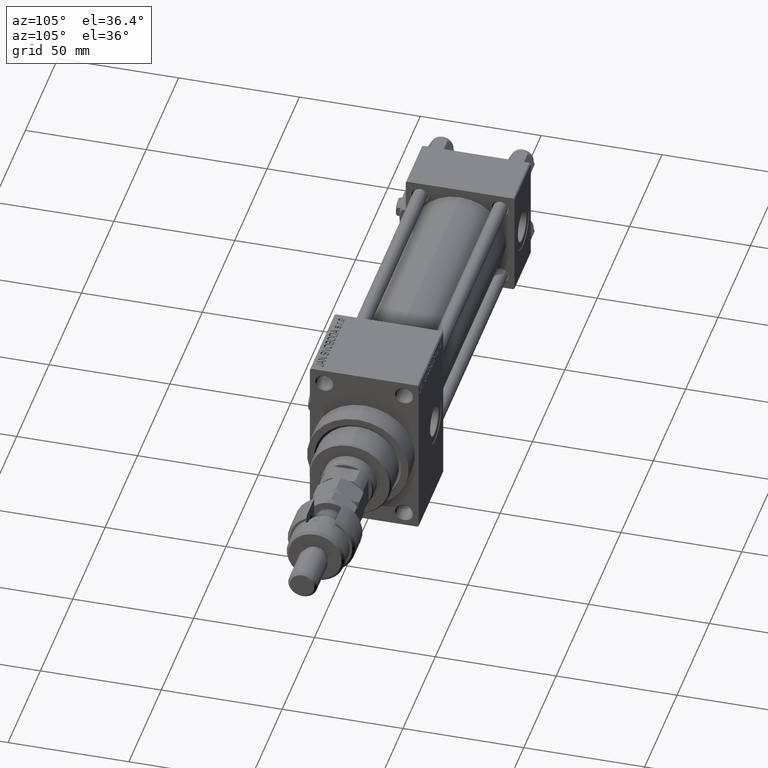
[diagram: clean part render]
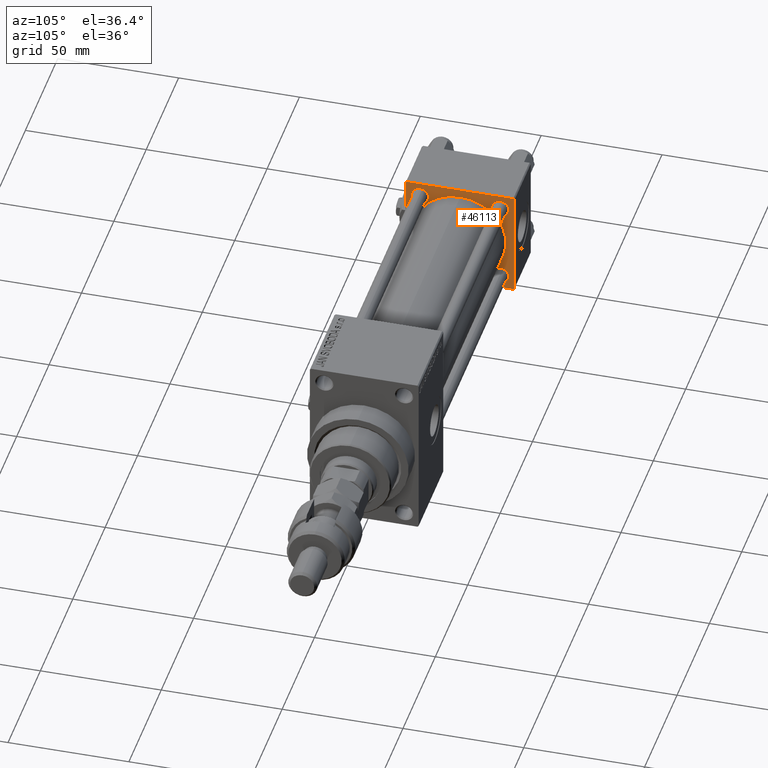
[diagram: same view with one face highlighted and labeled with its STEP entity id]
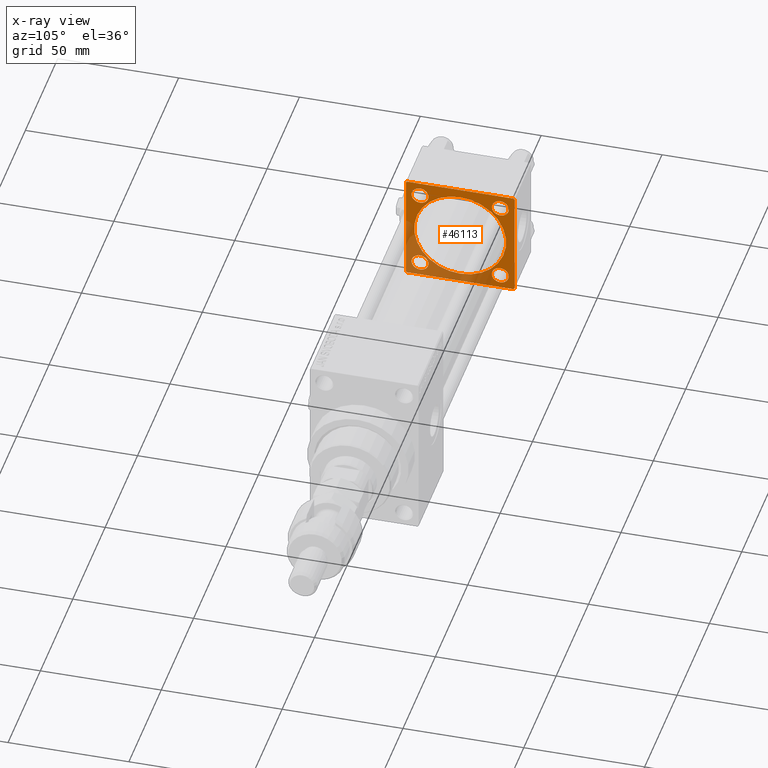
[diagram: x-ray of the same camera — body ghosted, the highlighted face saturated]
A machine part, auxiliary view. The second image highlights one B-rep face of the part: STEP entity #46113.
The next image is the same camera in x-ray: the body ghosted, the highlighted face saturated — about 34% of this face is hidden behind the body in this view.
In plain terms, the highlighted planar face has unit normal (-1, 0, 0).
Its self-contained STEP definition (entity closure, byte-faithful):
#101 = EDGE_CURVE ( 'NONE', #19522, #45952, #25700, .T. ) ;
#136 = VECTOR ( 'NONE', #27514, 1000.000000000000000 ) ;
#723 = EDGE_CURVE ( 'NONE', #51789, #40783, #13174, .T. ) ;
#821 = DIRECTION ( 'NONE',  ( -1.000000000000000000, 0.000000000000000000, -0.000000000000000000 ) ) ;
#909 = CIRCLE ( 'NONE', #14351, 3.499999999999975131 ) ;
#1362 = AXIS2_PLACEMENT_3D ( 'NONE', #33936, #5333, #18177 ) ;
#1469 = EDGE_CURVE ( 'NONE', #25393, #31443, #44878, .T. ) ;
#2395 = CARTESIAN_POINT ( 'NONE',  ( 25.00000000000000000, 22.50000000000000000, -21.99999999999998224 ) ) ;
#2739 = CARTESIAN_POINT ( 'NONE',  ( 25.00000000000000000, 22.50000000000000000, 21.99999999999999645 ) ) ;
#2787 = DIRECTION ( 'NONE',  ( 1.000000000000000000, -0.000000000000000000, 0.000000000000000000 ) ) ;
#2802 = CARTESIAN_POINT ( 'NONE',  ( 25.00000000000000000, -16.59999999999999076, -16.60000000000000853 ) ) ;
#2965 = DIRECTION ( 'NONE',  ( 0.000000000000000000, 0.000000000000000000, 1.000000000000000000 ) ) ;
#3487 = LINE ( 'NONE', #38686, #47909 ) ;
#3948 = DIRECTION ( 'NONE',  ( 0.000000000000000000, 0.000000000000000000, -1.000000000000000000 ) ) ;
#4108 = EDGE_CURVE ( 'NONE', #11998, #25393, #12152, .T. ) ;
#4167 = EDGE_CURVE ( 'NONE', #29602, #6072, #19145, .T. ) ;
#4453 = EDGE_LOOP ( 'NONE', ( #36517, #10837 ) ) ;
#4818 = VECTOR ( 'NONE', #40155, 1000.000000000000000 ) ;
#5333 = DIRECTION ( 'NONE',  ( 1.000000000000000000, -0.000000000000000000, 0.000000000000000000 ) ) ;
#5917 = FACE_BOUND ( 'NONE', #30658, .T. ) ;
#6072 = VERTEX_POINT ( 'NONE', #23385 ) ;
#6089 = CARTESIAN_POINT ( 'NONE',  ( 25.00000000000000000, -21.99999999999997158, -22.50000000000000711 ) ) ;
#6290 = ORIENTED_EDGE ( 'NONE', *, *, #45491, .F. ) ;
#6684 = CARTESIAN_POINT ( 'NONE',  ( 25.00000000000000000, 16.59999999999999787, 16.60000000000000497 ) ) ;
#7339 = ORIENTED_EDGE ( 'NONE', *, *, #40367, .T. ) ;
#7429 = VERTEX_POINT ( 'NONE', #15532 ) ;
#8261 = LINE ( 'NONE', #24274, #27801 ) ;
#8432 = VECTOR ( 'NONE', #3948, 1000.000000000000000 ) ;
#8672 = AXIS2_PLACEMENT_3D ( 'NONE', #23732, #19539, #11647 ) ;
#8730 = DIRECTION ( 'NONE',  ( -1.000000000000000000, 0.000000000000000000, -0.000000000000000000 ) ) ;
#9590 = FACE_BOUND ( 'NONE', #42719, .T. ) ;
#10124 = VECTOR ( 'NONE', #14180, 1000.000000000000000 ) ;
#10265 = CARTESIAN_POINT ( 'NONE',  ( 25.00000000000000000, 21.99999999999999289, 22.50000000000000355 ) ) ;
#10837 = ORIENTED_EDGE ( 'NONE', *, *, #24409, .T. ) ;
#11089 = VERTEX_POINT ( 'NONE', #44278 ) ;
#11494 = CARTESIAN_POINT ( 'NONE',  ( 25.00000000000000000, -21.99999999999998579, -22.50000000000000711 ) ) ;
#11606 = VERTEX_POINT ( 'NONE', #6089 ) ;
#11647 = DIRECTION ( 'NONE',  ( 0.000000000000000000, 0.000000000000000000, 1.000000000000000000 ) ) ;
#11740 = CARTESIAN_POINT ( 'NONE',  ( 25.00000000000000000, 16.59999999999999787, 16.60000000000000497 ) ) ;
#11998 = VERTEX_POINT ( 'NONE', #2739 ) ;
#12007 = DIRECTION ( 'NONE',  ( -1.000000000000000000, 0.000000000000000000, -0.000000000000000000 ) ) ;
#12152 = LINE ( 'NONE', #43948, #27535 ) ;
#12317 = CARTESIAN_POINT ( 'NONE',  ( 25.00000000000000000, 22.50000000000000000, 22.50000000000000355 ) ) ;
#13174 = CIRCLE ( 'NONE', #27432, 3.500000000000003109 ) ;
#14004 = ORIENTED_EDGE ( 'NONE', *, *, #4108, .T. ) ;
#14180 = DIRECTION ( 'NONE',  ( 0.000000000000000000, 0.000000000000000000, -1.000000000000000000 ) ) ;
#14351 = AXIS2_PLACEMENT_3D ( 'NONE', #2802, #15159, #47967 ) ;
#14476 = ORIENTED_EDGE ( 'NONE', *, *, #44996, .T. ) ;
#14723 = CARTESIAN_POINT ( 'NONE',  ( 25.00000000000000000, 22.50000000000000000, -21.99999999999996803 ) ) ;
#15159 = DIRECTION ( 'NONE',  ( -1.000000000000000000, 0.000000000000000000, -0.000000000000000000 ) ) ;
#15228 = CARTESIAN_POINT ( 'NONE',  ( 24.99999999999999289, -2.752562955852396712E-16, -19.00000000000000000 ) ) ;
#15296 = CIRCLE ( 'NONE', #37871, 3.500000000000003109 ) ;
#15316 = ORIENTED_EDGE ( 'NONE', *, *, #42689, .F. ) ;
#15333 = DIRECTION ( 'NONE',  ( 0.000000000000000000, 0.000000000000000000, 1.000000000000000000 ) ) ;
#15457 = VECTOR ( 'NONE', #30255, 1000.000000000000000 ) ;
#15532 = CARTESIAN_POINT ( 'NONE',  ( 25.00000000000000000, 21.99999999999999289, -22.49999999999999645 ) ) ;
#16104 = ORIENTED_EDGE ( 'NONE', *, *, #101, .F. ) ;
#16215 = CARTESIAN_POINT ( 'NONE',  ( 24.99999999999999289, -2.602085213965210642E-15, 19.00000000000000000 ) ) ;
#16369 = CARTESIAN_POINT ( 'NONE',  ( 25.00000000000000000, 16.59999999999999787, -16.60000000000000497 ) ) ;
#17390 = EDGE_CURVE ( 'NONE', #40783, #51789, #45151, .T. ) ;
#17877 = CARTESIAN_POINT ( 'NONE',  ( 25.00000000000000000, 16.59999999999999787, 20.10000000000000853 ) ) ;
#18036 = EDGE_LOOP ( 'NONE', ( #15316, #42052, #6290, #14004, #24774, #49424, #7339, #31108 ) ) ;
#18177 = DIRECTION ( 'NONE',  ( 0.000000000000000000, 0.000000000000000000, 1.000000000000000000 ) ) ;
#18470 = CARTESIAN_POINT ( 'NONE',  ( 25.00000000000000000, 16.59999999999999787, -20.10000000000000853 ) ) ;
#18991 = DIRECTION ( 'NONE',  ( 0.000000000000000000, -1.000000000000000000, -2.312964634635742957E-16 ) ) ;
#19145 = CIRCLE ( 'NONE', #25838, 3.499999999999975131 ) ;
#19507 = CIRCLE ( 'NONE', #48853, 19.00000000000000000 ) ;
#19522 = VERTEX_POINT ( 'NONE', #15228 ) ;
#19539 = DIRECTION ( 'NONE',  ( -1.000000000000000000, 0.000000000000000000, -0.000000000000000000 ) ) ;
#19559 = CARTESIAN_POINT ( 'NONE',  ( 25.00000000000000000, 0.000000000000000000, 0.000000000000000000 ) ) ;
#21936 = FACE_BOUND ( 'NONE', #36172, .T. ) ;
#22485 = AXIS2_PLACEMENT_3D ( 'NONE', #11740, #12007, #44058 ) ;
#22674 = LINE ( 'NONE', #34755, #8432 ) ;
#23385 = CARTESIAN_POINT ( 'NONE',  ( 25.00000000000000000, -16.59999999999999076, -20.09999999999998366 ) ) ;
#23442 = CARTESIAN_POINT ( 'NONE',  ( 25.00000000000000000, -16.59999999999999076, 16.60000000000000853 ) ) ;
#23732 = CARTESIAN_POINT ( 'NONE',  ( 25.00000000000000000, -16.59999999999999076, 16.60000000000000853 ) ) ;
#24274 = CARTESIAN_POINT ( 'NONE',  ( 25.00000000000000000, -22.50000000000000000, 22.00000000000000000 ) ) ;
#24409 = EDGE_CURVE ( 'NONE', #11089, #39140, #35349, .T. ) ;
#24774 = ORIENTED_EDGE ( 'NONE', *, *, #1469, .T. ) ;
#25393 = VERTEX_POINT ( 'NONE', #10265 ) ;
#25700 = CIRCLE ( 'NONE', #1362, 19.00000000000000000 ) ;
#25742 = EDGE_LOOP ( 'NONE', ( #34947, #33177 ) ) ;
#25744 = CARTESIAN_POINT ( 'NONE',  ( 25.00000000000000000, -16.59999999999999076, 20.09999999999998721 ) ) ;
#25838 = AXIS2_PLACEMENT_3D ( 'NONE', #35785, #47353, #15333 ) ;
#25867 = FACE_BOUND ( 'NONE', #4453, .T. ) ;
#26255 = CARTESIAN_POINT ( 'NONE',  ( 25.00000000000000000, 22.50000000000000000, 22.50000000000000355 ) ) ;
#26305 = LINE ( 'NONE', #2395, #15457 ) ;
#26436 = EDGE_CURVE ( 'NONE', #45952, #19522, #19507, .T. ) ;
#26776 = CARTESIAN_POINT ( 'NONE',  ( 25.00000000000000000, -16.59999999999999076, -13.10000000000003162 ) ) ;
#26953 = AXIS2_PLACEMENT_3D ( 'NONE', #16369, #8730, #28948 ) ;
#27178 = PLANE ( 'NONE',  #29494 ) ;
#27273 = CARTESIAN_POINT ( 'NONE',  ( 25.00000000000000000, 16.59999999999999787, 13.10000000000000142 ) ) ;
#27335 = ORIENTED_EDGE ( 'NONE', *, *, #17390, .T. ) ;
#27432 = AXIS2_PLACEMENT_3D ( 'NONE', #6684, #34010, #34261 ) ;
#27514 = DIRECTION ( 'NONE',  ( 0.000000000000000000, 0.7071067811865426878, -0.7071067811865524577 ) ) ;
#27535 = VECTOR ( 'NONE', #35533, 1000.000000000000114 ) ;
#27801 = VECTOR ( 'NONE', #28734, 999.9999999999998863 ) ;
#27856 = EDGE_CURVE ( 'NONE', #37052, #51765, #28808, .T. ) ;
#28734 = DIRECTION ( 'NONE',  ( -0.000000000000000000, -0.7071067811865525687, -0.7071067811865425767 ) ) ;
#28808 = CIRCLE ( 'NONE', #8672, 3.499999999999978684 ) ;
#28948 = DIRECTION ( 'NONE',  ( 0.000000000000000000, 0.000000000000000000, 1.000000000000000000 ) ) ;
#29466 = AXIS2_PLACEMENT_3D ( 'NONE', #23442, #34480, #2965 ) ;
#29494 = AXIS2_PLACEMENT_3D ( 'NONE', #19559, #35047, #43461 ) ;
#29602 = VERTEX_POINT ( 'NONE', #26776 ) ;
#30255 = DIRECTION ( 'NONE',  ( -0.000000000000000000, 0.7071067811865426878, 0.7071067811865524577 ) ) ;
#30658 = EDGE_LOOP ( 'NONE', ( #27335, #33392 ) ) ;
#30898 = DIRECTION ( 'NONE',  ( 0.000000000000000000, 0.000000000000000000, 1.000000000000000000 ) ) ;
#31108 = ORIENTED_EDGE ( 'NONE', *, *, #43512, .T. ) ;
#31443 = VERTEX_POINT ( 'NONE', #40852 ) ;
#32496 = EDGE_CURVE ( 'NONE', #7429, #37501, #26305, .T. ) ;
#32633 = CARTESIAN_POINT ( 'NONE',  ( 25.00000000000000000, 16.59999999999999787, -16.60000000000000497 ) ) ;
#33177 = ORIENTED_EDGE ( 'NONE', *, *, #42647, .T. ) ;
#33392 = ORIENTED_EDGE ( 'NONE', *, *, #723, .T. ) ;
#33936 = CARTESIAN_POINT ( 'NONE',  ( 24.99999999999999289, -2.602085213965210642E-15, 0.000000000000000000 ) ) ;
#34010 = DIRECTION ( 'NONE',  ( -1.000000000000000000, 0.000000000000000000, -0.000000000000000000 ) ) ;
#34261 = DIRECTION ( 'NONE',  ( 0.000000000000000000, 0.000000000000000000, 1.000000000000000000 ) ) ;
#34480 = DIRECTION ( 'NONE',  ( -1.000000000000000000, 0.000000000000000000, -0.000000000000000000 ) ) ;
#34755 = CARTESIAN_POINT ( 'NONE',  ( 25.00000000000000000, -22.50000000000000000, 22.50000000000000000 ) ) ;
#34947 = ORIENTED_EDGE ( 'NONE', *, *, #27856, .T. ) ;
#35047 = DIRECTION ( 'NONE',  ( -1.000000000000000000, 0.000000000000000000, -0.000000000000000000 ) ) ;
#35339 = ORIENTED_EDGE ( 'NONE', *, *, #26436, .F. ) ;
#35349 = CIRCLE ( 'NONE', #26953, 3.500000000000003109 ) ;
#35533 = DIRECTION ( 'NONE',  ( 0.000000000000000000, -0.7071067811865474617, 0.7071067811865474617 ) ) ;
#35647 = VERTEX_POINT ( 'NONE', #44405 ) ;
#35785 = CARTESIAN_POINT ( 'NONE',  ( 25.00000000000000000, -16.59999999999999076, -16.60000000000000853 ) ) ;
#36172 = EDGE_LOOP ( 'NONE', ( #35339, #16104 ) ) ;
#36517 = ORIENTED_EDGE ( 'NONE', *, *, #47361, .T. ) ;
#37052 = VERTEX_POINT ( 'NONE', #50334 ) ;
#37501 = VERTEX_POINT ( 'NONE', #14723 ) ;
#37871 = AXIS2_PLACEMENT_3D ( 'NONE', #32633, #821, #48636 ) ;
#38075 = LINE ( 'NONE', #26255, #10124 ) ;
#38686 = CARTESIAN_POINT ( 'NONE',  ( 25.00000000000000000, 22.50000000000000000, -22.49999999999999645 ) ) ;
#38863 = CARTESIAN_POINT ( 'NONE',  ( 25.00000000000000000, -22.50000000000000000, -21.99999999999997158 ) ) ;
#39140 = VERTEX_POINT ( 'NONE', #18470 ) ;
#40155 = DIRECTION ( 'NONE',  ( 0.000000000000000000, -1.000000000000000000, -7.709882115452476934E-17 ) ) ;
#40367 = EDGE_CURVE ( 'NONE', #35647, #50437, #22674, .T. ) ;
#40783 = VERTEX_POINT ( 'NONE', #27273 ) ;
#40852 = CARTESIAN_POINT ( 'NONE',  ( 25.00000000000000000, -21.99999999999997868, 22.50000000000000000 ) ) ;
#41888 = FACE_BOUND ( 'NONE', #25742, .T. ) ;
#42048 = CIRCLE ( 'NONE', #29466, 3.499999999999978684 ) ;
#42052 = ORIENTED_EDGE ( 'NONE', *, *, #32496, .T. ) ;
#42647 = EDGE_CURVE ( 'NONE', #51765, #37052, #42048, .T. ) ;
#42689 = EDGE_CURVE ( 'NONE', #7429, #11606, #3487, .T. ) ;
#42719 = EDGE_LOOP ( 'NONE', ( #14476, #47623 ) ) ;
#43461 = DIRECTION ( 'NONE',  ( -0.000000000000000000, 0.000000000000000000, 1.000000000000000000 ) ) ;
#43512 = EDGE_CURVE ( 'NONE', #50437, #11606, #47479, .T. ) ;
#43948 = CARTESIAN_POINT ( 'NONE',  ( 25.00000000000000000, 21.99999999999999289, 22.50000000000000355 ) ) ;
#44058 = DIRECTION ( 'NONE',  ( 0.000000000000000000, 0.000000000000000000, 1.000000000000000000 ) ) ;
#44278 = CARTESIAN_POINT ( 'NONE',  ( 25.00000000000000000, 16.59999999999999787, -13.10000000000000142 ) ) ;
#44405 = CARTESIAN_POINT ( 'NONE',  ( 25.00000000000000000, -22.50000000000000000, 22.00000000000000000 ) ) ;
#44878 = LINE ( 'NONE', #12317, #4818 ) ;
#44996 = EDGE_CURVE ( 'NONE', #6072, #29602, #909, .T. ) ;
#45151 = CIRCLE ( 'NONE', #22485, 3.500000000000003109 ) ;
#45491 = EDGE_CURVE ( 'NONE', #11998, #37501, #38075, .T. ) ;
#45952 = VERTEX_POINT ( 'NONE', #16215 ) ;
#46113 = ADVANCED_FACE ( 'NONE', ( #9590, #25867, #41888, #5917, #21936, #51333 ), #27178, .F. ) ;
#46301 = EDGE_CURVE ( 'NONE', #31443, #35647, #8261, .T. ) ;
#47353 = DIRECTION ( 'NONE',  ( -1.000000000000000000, 0.000000000000000000, -0.000000000000000000 ) ) ;
#47361 = EDGE_CURVE ( 'NONE', #39140, #11089, #15296, .T. ) ;
#47479 = LINE ( 'NONE', #11494, #136 ) ;
#47623 = ORIENTED_EDGE ( 'NONE', *, *, #4167, .T. ) ;
#47909 = VECTOR ( 'NONE', #18991, 1000.000000000000000 ) ;
#47967 = DIRECTION ( 'NONE',  ( 0.000000000000000000, 0.000000000000000000, 1.000000000000000000 ) ) ;
#48636 = DIRECTION ( 'NONE',  ( 0.000000000000000000, 0.000000000000000000, 1.000000000000000000 ) ) ;
#48853 = AXIS2_PLACEMENT_3D ( 'NONE', #50841, #2787, #30898 ) ;
#49424 = ORIENTED_EDGE ( 'NONE', *, *, #46301, .T. ) ;
#50334 = CARTESIAN_POINT ( 'NONE',  ( 25.00000000000000000, -16.59999999999999076, 13.10000000000002807 ) ) ;
#50437 = VERTEX_POINT ( 'NONE', #38863 ) ;
#50841 = CARTESIAN_POINT ( 'NONE',  ( 24.99999999999999289, -2.602085213965210642E-15, 0.000000000000000000 ) ) ;
#51333 = FACE_OUTER_BOUND ( 'NONE', #18036, .T. ) ;
#51765 = VERTEX_POINT ( 'NONE', #25744 ) ;
#51789 = VERTEX_POINT ( 'NONE', #17877 ) ;